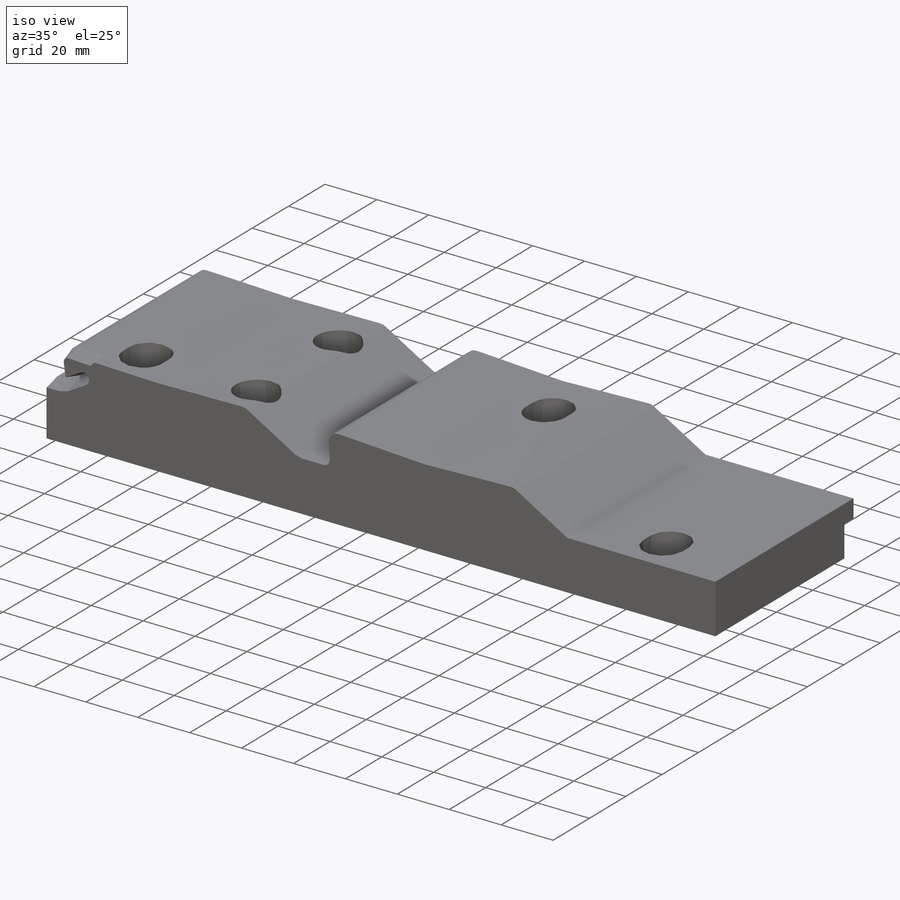
[diagram: iso view]
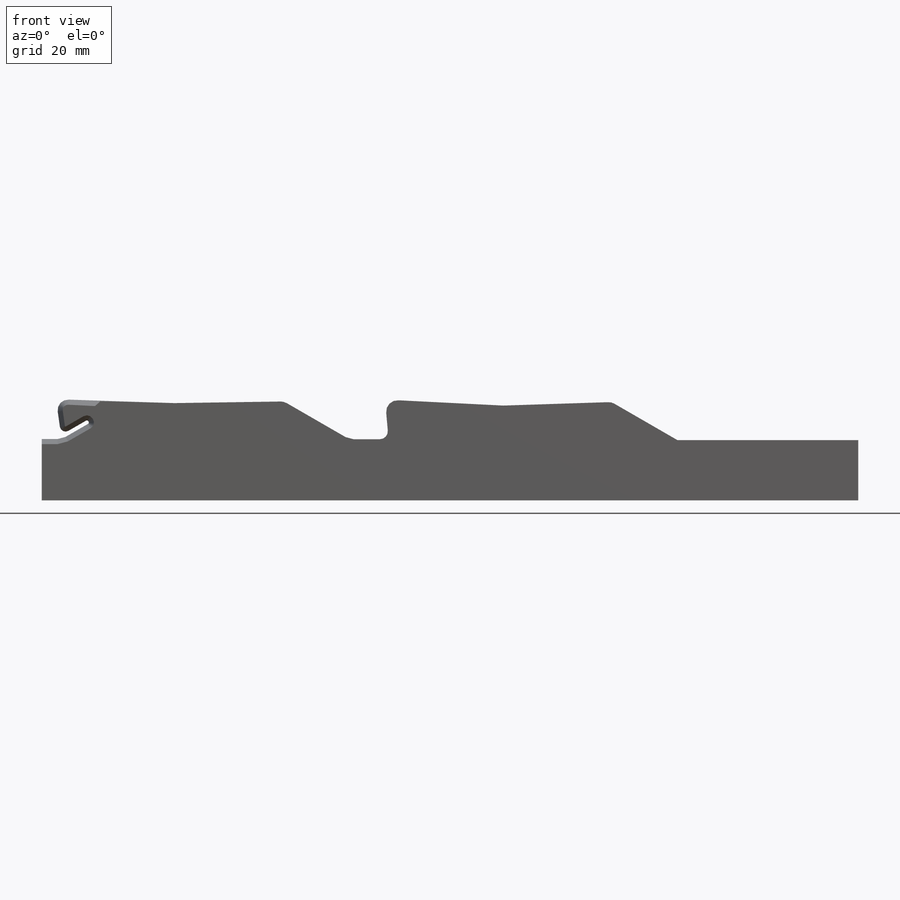
[diagram: front view]
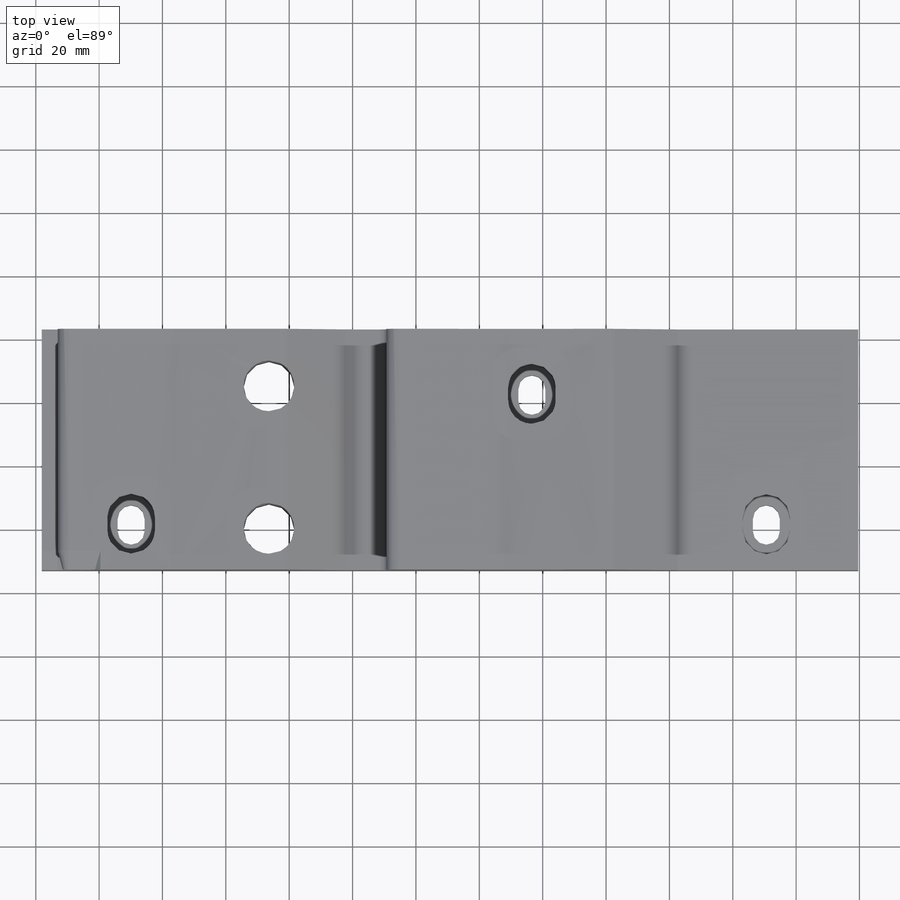
[diagram: top view]
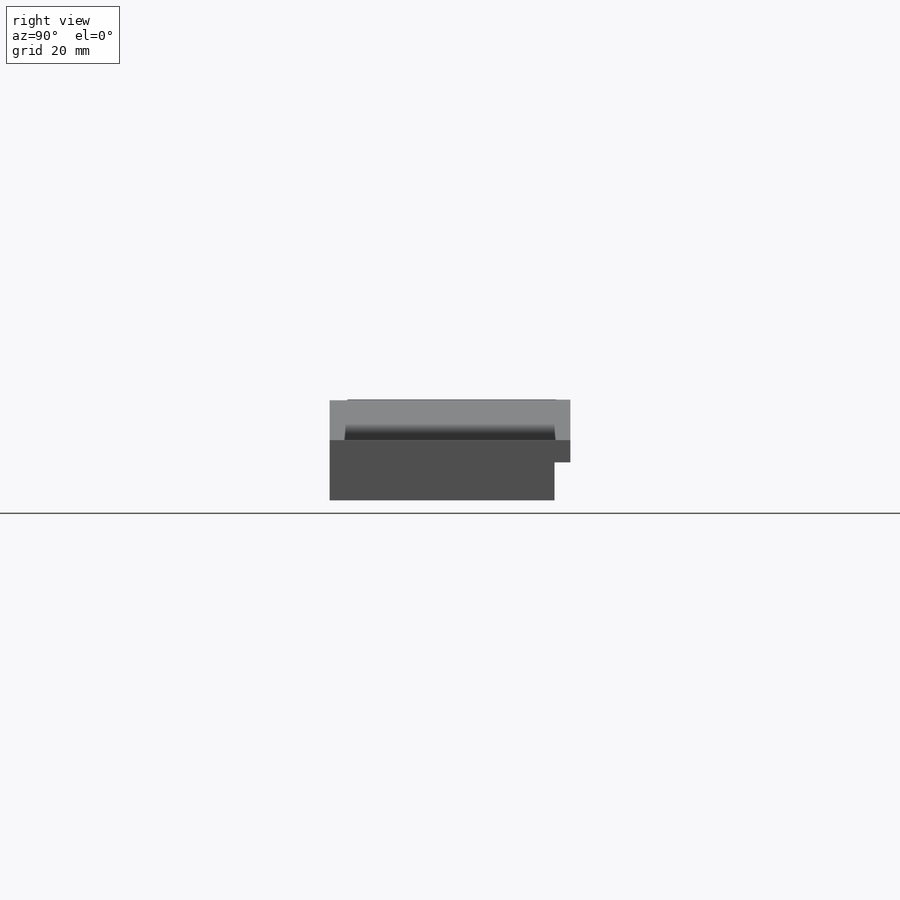
[diagram: right view]
SOLIDWORKS PART (.sldprt)
format: sldprt  version: not decoded by parser v0  size: 1,992,192 bytes
history: native  units: mm
features: sketch x34, cut_extrude x8, plane x6, sheet_metal_op x2, hole x2, material x1, extrude x1, fillet x1, sweep x1, chamfer x1, mirror x1 + 9 further entries (+10 scaffold rows collapsed)
feature tree (77):
  scaffold x10  (default folders/planes/origin — collapsed)
  material  "Легированная сталь"
  "Элемент списка вырезов2"
  plane  "Спереди"
  plane  "Сверху"
  plane  "Справа"
  plane  "Плоскость2"  Offset=3mm
  sketch  "Эскиз3"  dims[c1.D8=6.0mm c1.D9=3.0mm c1.D19=3.0mm c1.D20=6.0mm c1.D5=800.0mm c1.D6=3.5mm c1.D7=3.5mm c2.D8=3.6mm c2.D9=3.6mm c2.D5=2.5mm c2.D10=5.0mm c2.D14=800.0mm c2.D16=3.6mm c2.D18=8.0mm c2.D19=6.6mm c2.D20=6.6mm c2.D21=1400.0mm c2.D22=8.0mm c2.D26=1.8mm c2.D27=2.0mm c2.D28=3.3mm c2.D23=0.5mm c3.D27=5.0mm c3.D1=43.5mm c3.D2=38.0mm c4.D1=263.0mm c4.D2=66.8mm c4.D3=75.8mm c4.D4=31.8mm c4.D5=3.3mm c4.D6=38.0mm c4.D7=73.0mm c4.D10=5.0mm c4.D11=2.9995mm c5.D11=62.0deg c5.D12=14.2mm c5.D13=107.0mm c5.D14=~67.677225mm c6.D14=~7.615502deg c6.D15=~2.251317mm c7.D15=10.0deg c7.D16=~7.964858mm c7.D17=~17.794996mm c8.D17=6.5deg c8.D18=5.0mm c8.D21=~2.966291mm c9.D21=62.0deg c9.D22=44.0mm c9.D23=~45.614758mm c10.D23=10.0deg c10.D24=10.5mm c10.D25=102.8mm c10.D1=19.3mm c10.D2=~15.109053mm c11.D2=85.0deg c11.D3=~28.69076mm c12.D3=150.0deg c12.D4=19.0mm c12.D7=12.0mm c12.D9=31.6mm c12.D11=173.95mm c12.D12=13.5mm c12.D13=252.7mm c12.D15=~35.480274mm c13.D15=30.0deg c13.D16=103.7mm c13.D17=93.4mm c13.D20=31.8mm c13.D22=31.2mm c13.D23=25.0mm c13.D24=~3.96782mm c14.D24=8.0deg c14.D25=~10.038425mm c15.D25=60.0deg c15.D28=10.1mm c15.D29=~5.807311mm c16.D29=30.0deg c16.D30=5.0mm c16.D31=1.2mm c16.D32=10.0mm]
  sheet_metal_op  "Листовой металл1"  Листовой металл3=0 Толщина=76mm Листовой металл4=0 Листовой металл5=0 Листовой металл6=0 Листовой металл7=0 Листовой металл8=0
  sheet_metal_op  "Базовая кромка1"
  sketch  "Эскиз10"  dims[c1.D1=38.0mm c1.D2=38.4mm c2.D2=90.0deg c3.D2=207.2mm]
  sketch  "Эскиз6"  dims[D1=5.0mm D2=1.5mm]
  sketch  "Эскиз7"
  cut_extrude  "Вырез-Вытянуть1"  [1 undecoded]
  extrude  "Бобышка-Вытянуть1"  [1 undecoded]
  sketch  "Эскиз10<2>"
  sketch  "Эскиз11"  dims[D3=11.0mm D6=12.0mm D7=12.0mm D4=7.0mm D5=7.0mm D1=7.0mm D2=7.0mm]
  cut_extrude  "Вырез-Вытянуть2"  Depth=5mm
  sketch  "Эскиз12"  dims[c1.D1=5.0mm c1.D2=12.0mm c2.D1=5.0mm]
  cut_extrude  "Вырез-Вытянуть3"  Depth=43.4mm
  sketch  "Эскиз13"  dims[D3=3.0mm D1=25.1mm D2=26.0mm]
  hole  "Отверстие с зазором M101"  [1 undecoded]
  sketch  "Эскиз9"  dims[D1=228.5mm D2=89.0mm D3=9.8mm D4=32.0mm D5=19.0mm]
  sketch  "Эскиз8"  dims[hole-wizard template sketch: 59 standard entries collapsed; hole parameters kept: c18.Диаметр сквозного отверстия=10.2mm c18.Глубина сквозного отверстия=6.0mm]
  cut_extrude  "Вырез-Вытянуть4"  Depth=43mm
  sketch  "Эскиз14"
  plane  "Плоскость3"  Offset=121.6mm
  sketch  "Эскиз15"  dims[c1.D1=0.8mm c1.D2=~10.872481mm c2.D2=5.0deg]
  cut_extrude  "Вырез-Вытянуть8"  [1 undecoded]
  fillet  "Скругление1"  Radius=3mm
  hole  "Диаметр отверстия Ø16.0 (16)1"  [1 undecoded]
  sketch  "Эскиз17"  dims[c1.D1=45.0mm c1.D2=18.0mm c1.D3=140.5mm c2.D3=186.0mm]
  sketch  "Эскиз18"  dims[hole-wizard template sketch: 59 standard entries collapsed; hole parameters kept: c18.Диаметр сквозного отверстия=16.0mm c18.Глубина сквозного отверстия=31.8mm]
  sketch  "Эскиз19"  dims[c1.D1=~3.255755mm c1.D4=7.5mm c1.D6=16.0mm c1.D12=16.0mm c1.D13=7.5mm c2.D1=12.5mm c2.D2=8.5mm c2.D3=15.0mm c2.D4=19.0mm c2.D5=61.5mm c2.D6=43.5mm c2.D8=200.5mm c2.D11=20.5mm c2.D12=83.0mm c2.D13=4.0mm c3.D11=41.0mm c3.D13=~22.840386mm c3.D14=15.5mm c3.D15=15.5mm c3.D16=17.5mm c3.D17=17.5mm c3.D18=19.5mm c3.D19=19.5mm c4.D14=15.5mm c4.D15=19.5mm c4.D7=2.0]
  cut_extrude  "Вырез-Вытянуть9"  [1 undecoded]
  cut_extrude  "Вырез-Вытянуть10"  [1 undecoded]
  sketch  "Эскиз19<3>"  dims[D19=9.0mm]
  sketch  "Эскиз21"  dims[D1=0.5mm D2=1.8mm]
  plane  "Плоскость4"
  sketch  "Эскиз22"  dims[c1.D1=~4.218153mm c2.D1=15.0deg c2.D2=6.0mm c2.D3=~1.607695mm]
  sweep  "Вырез-По траектории1"
  chamfer  "Фаска2"  Distance=2mm Angle=45deg
  sketch  "Эскиз20"  dims[D1=~10.094707mm]
  mirror  "Зеркальное отражение4"
  cut_extrude  "Вырез-Вытянуть11"  [1 undecoded]
  sketch  "Эскиз3<3>"
  "Развертка1"
  sketch  "Сгиб-Линии1"
  sketch  "Граничная рамка1"
  "Преобразование эскиза1"
  "Развертка3"
  sketch  "Сгиб-Линии3"
  sketch  "Граничная рамка3"
  "Развертка4"
  sketch  "Сгиб-Линии4"
  sketch  "Граничная рамка4"
  "Развертка5"
  sketch  "Сгиб-Линии5"
  sketch  "Граничная рамка5"
  "Развертка6"
  sketch  "Сгиб-Линии6"
  sketch  "Граничная рамка6"
  "Развертка7"
  sketch  "Сгиб-Линии7"
  sketch  "Граничная рамка7"
  "Развертка8"
  sketch  "Сгиб-Линии8"
  sketch  "Граничная рамка8"
decode coverage: 22 of 51 modeling features carry decoded parameters; 9 rows unclassified (native names shown)
note: ~ marks probable driven/reference dimensions
note: 8 parameter values undecoded
summary: no parameter record found for 8 features
note: suppression state not decoded; provenance and decode notes live in map.json
